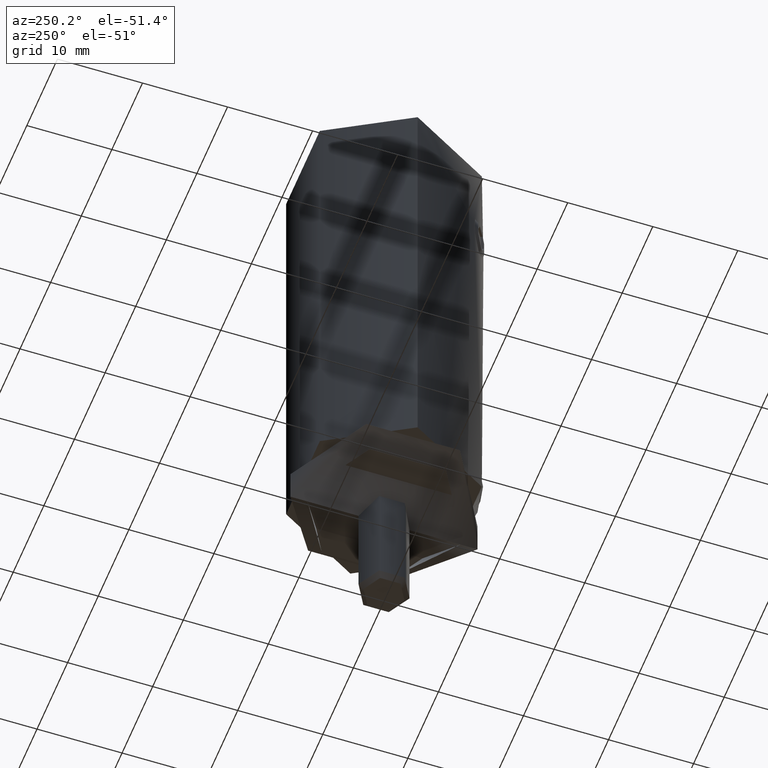
[diagram: clean part render]
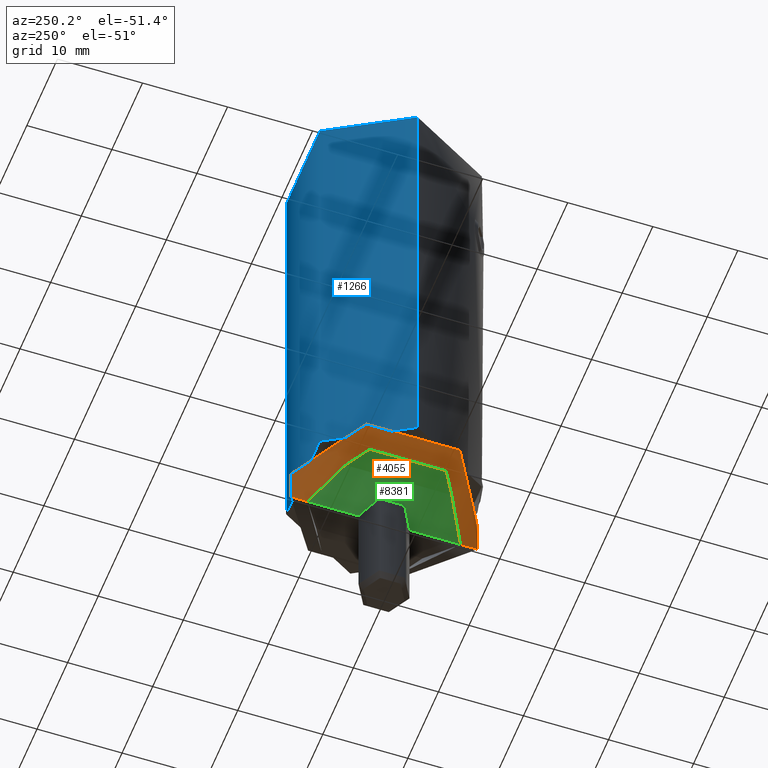
[diagram: same view with three faces highlighted in distinct colors, each labeled with its STEP entity id]
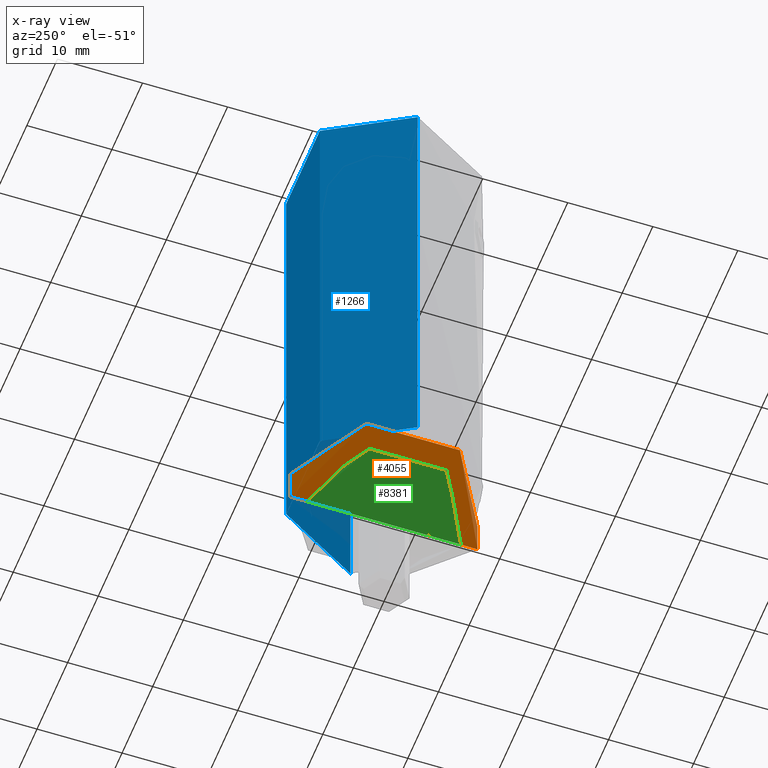
[diagram: x-ray of the same camera — body ghosted, the three highlighted faces saturated]
A machine part, auxiliary view with three faces highlighted in distinct colors.
The next image is the same camera in x-ray (body ghosted, the three faces saturated) — at least one of them is partly hidden behind the body in this view.
Their STEP definitions:

[orange] entity #4055 — the highlighted cylindrical surface (partial cylindrical patch) has radius 11 mm, axis along (0, 0, -1).
#152 = AXIS2_PLACEMENT_3D ( 'NONE', #18030, #9445, #18173 ) ;
#323 = CARTESIAN_POINT ( 'NONE',  ( 1.347111479062088405E-15, -11.00000000000000000, 1.999999999999997335 ) ) ;
#773 = CARTESIAN_POINT ( 'NONE',  ( -1.467299718637822936, -10.92589961751967209, -0.03871547189467000605 ) ) ;
#852 = CARTESIAN_POINT ( 'NONE',  ( -8.274939801116788729, 7.256114209764481515, -1.680118530030330737 ) ) ;
#1078 = CARTESIAN_POINT ( 'NONE',  ( -8.270404237882663878, -7.261240364331858821, -1.678201803686913296 ) ) ;
#1366 = CARTESIAN_POINT ( 'NONE',  ( -2.909539390763690836, 10.61443736759360768, -0.1976752837172814636 ) ) ;
#1800 = EDGE_CURVE ( 'NONE', #12080, #9661, #21603, .T. ) ;
#2155 = LINE ( 'NONE', #323, #19928 ) ;
#2505 = CARTESIAN_POINT ( 'NONE',  ( -9.870325263758303436, 4.908819845232764933, -2.435217944284062241 ) ) ;
#2583 = CARTESIAN_POINT ( 'NONE',  ( -3.587022875713401060, -10.40513242016348272, -0.3026765963442593632 ) ) ;
#2653 = CARTESIAN_POINT ( 'NONE',  ( -9.528112198186326154, -5.542580356113599116, -2.256720353186257633 ) ) ;
#2805 = CARTESIAN_POINT ( 'NONE',  ( -10.71292069468791652, 2.522954243024977394, -2.905732086509016820 ) ) ;
#4055 = ADVANCED_FACE ( 'NONE', ( #10069 ), #11418, .T. ) ;
#4381 = CARTESIAN_POINT ( 'NONE',  ( -2.888607095253890922, -10.62023836085034922, -0.1947433341766077186 ) ) ;
#4423 = CARTESIAN_POINT ( 'NONE',  ( 0.000000000000000000, -2.449293598294700991E-16, 1.999999999999998668 ) ) ;
#4469 = CARTESIAN_POINT ( 'NONE',  ( -4.925419289156148572, -9.861988409670594535, -0.5689665070091405319 ) ) ;
#4616 = CARTESIAN_POINT ( 'NONE',  ( 1.336382355046097823E-48, 11.00000000000000000, -5.189388084647006883E-16 ) ) ;
#4685 = CARTESIAN_POINT ( 'NONE',  ( -2.552064494333419642, 10.70615899485355982, -0.1510597987303588519 ) ) ;
#5418 = EDGE_CURVE ( 'NONE', #9661, #16861, #18389, .T. ) ;
#5574 = CARTESIAN_POINT ( 'NONE',  ( 0.000000000000000000, 11.00000000000000178, 4.000000000000000000 ) ) ;
#5773 = VERTEX_POINT ( 'NONE', #19046 ) ;
#5982 = CARTESIAN_POINT ( 'NONE',  ( -10.40232475824445402, -3.594992271804332784, -2.727129868824425873 ) ) ;
#6002 = CARTESIAN_POINT ( 'NONE',  ( 1.336382355046097823E-48, 11.00000000000000000, -5.189388084647006883E-16 ) ) ;
#6137 = CARTESIAN_POINT ( 'NONE',  ( -2.535894805954845399, -10.70986929249087183, -0.1491693662918049945 ) ) ;
#6281 = CARTESIAN_POINT ( 'NONE',  ( -9.864297932310673644, -4.919862878017693397, -2.432080945133788141 ) ) ;
#6490 = CARTESIAN_POINT ( 'NONE',  ( 0.000000000000000000, 11.00000000000000000, 2.000000000000000000 ) ) ;
#6863 = ORIENTED_EDGE ( 'NONE', *, *, #1800, .T. ) ;
#7783 = CARTESIAN_POINT ( 'NONE',  ( -10.70789862065493558, -2.544190434656818933, -2.902788414739169376 ) ) ;
#7849 = CARTESIAN_POINT ( 'NONE',  ( -7.536272219175395470, -8.020506772223100711, -1.382934182049867955 ) ) ;
#8181 = DIRECTION ( 'NONE',  ( -0.000000000000000000, 1.224646799147353700E-16, -1.000000000000000000 ) ) ;
#8391 = ORIENTED_EDGE ( 'NONE', *, *, #5418, .T. ) ;
#8393 = B_SPLINE_CURVE_WITH_KNOTS ( 'NONE', 3,
 ( #19949, #14610, #773, #6137, #4381, #2583, #12952, #4469, #18088, #19817, #16587, #16431, #7849, #16505, #1078, #21663, #9512, #2653, #6281, #11157, #5982, #12804, #7783, #11372, #18168, #19886, #19745, #21590, #13107, #2805, #18319, #20031, #21738, #2505, #14534, #16284, #18022, #852, #9872, #11675, #14994, #21879, #18533, #13242, #20316, #1366, #4685, #16653, #13172, #4616 ),
 .UNSPECIFIED., .F., .F.,
 ( 4, 2, 2, 2, 2, 2, 2, 2, 2, 2, 2, 2, 2, 2, 2, 2, 2, 2, 2, 2, 2, 2, 2, 2, 4 ),
 ( 1.310328094856666289E-18, 0.002189073260105993315, 0.003283609890158989322, 0.004378146520211985762, 0.006567219780317982113, 0.007661756410370981589, 0.008756293040423981933, 0.009850829670476979674, 0.01094536630052997742, 0.01313443956063597637, 0.01422897619068897584, 0.01532351282074197532, 0.01751258608084797774, 0.01860712271090097722, 0.01970165934095397670, 0.02079619597100697617, 0.02189073260105997565, 0.02407980586116597807, 0.02517434249121897755, 0.02626887912127197702, 0.02845795238137797944, 0.03064702564148398187, 0.03174156227153698828, 0.03283609890158998429, 0.03502517216169598324 ),
 .UNSPECIFIED. ) ;
#9440 = AXIS2_PLACEMENT_3D ( 'NONE', #4423, #11410, #21699 ) ;
#9445 = DIRECTION ( 'NONE',  ( -0.000000000000000000, 1.224646799147353700E-16, -1.000000000000000000 ) ) ;
#9512 = CARTESIAN_POINT ( 'NONE',  ( -8.933765440907338373, -6.427605682767927320, -1.973039072528820936 ) ) ;
#9661 = VERTEX_POINT ( 'NONE', #5574 ) ;
#9872 = CARTESIAN_POINT ( 'NONE',  ( -8.038023672227113892, 7.517592985075362222, -1.581089171437414009 ) ) ;
#10069 = FACE_OUTER_BOUND ( 'NONE', #20923, .T. ) ;
#10765 = ORIENTED_EDGE ( 'NONE', *, *, #21824, .F. ) ;
#11157 = CARTESIAN_POINT ( 'NONE',  ( -10.27909791159250474, -3.932874550868090235, -2.658022328760494268 ) ) ;
#11372 = CARTESIAN_POINT ( 'NONE',  ( -10.92471211156022193, -1.476027313982266609, -3.030827097976155127 ) ) ;
#11410 = DIRECTION ( 'NONE',  ( -0.000000000000000000, 1.224646799147353700E-16, -1.000000000000000000 ) ) ;
#11418 = CYLINDRICAL_SURFACE ( 'NONE', #9440, 11.00000000000000000 ) ;
#11675 = CARTESIAN_POINT ( 'NONE',  ( -7.292018243914418107, 8.265747716242641374, -1.286376107099082455 ) ) ;
#12080 = VERTEX_POINT ( 'NONE', #14640 ) ;
#12804 = CARTESIAN_POINT ( 'NONE',  ( -10.61711103650347177, -2.899876385102412968, -2.849734484269160983 ) ) ;
#12952 = CARTESIAN_POINT ( 'NONE',  ( -3.929596504971301307, -10.28046273033147173, -0.3646191335785071153 ) ) ;
#13107 = CARTESIAN_POINT ( 'NONE',  ( -10.85603726131801849, 1.810641572466848759, -2.990294805183330684 ) ) ;
#13172 = CARTESIAN_POINT ( 'NONE',  ( -0.7418275625343611068, 11.00000000000000000, -5.183841637196318075E-16 ) ) ;
#13242 = CARTESIAN_POINT ( 'NONE',  ( -3.940806586855172711, 10.27609454963676150, -0.3667713701925430780 ) ) ;
#13374 = EDGE_CURVE ( 'NONE', #5773, #16861, #8393, .T. ) ;
#13772 = VECTOR ( 'NONE', #15209, 1000.000000000000000 ) ;
#14534 = CARTESIAN_POINT ( 'NONE',  ( -9.532702728941725212, 5.534703615640189867, -2.259038555950330540 ) ) ;
#14610 = CARTESIAN_POINT ( 'NONE',  ( -0.7410559829012653976, -11.00000000000000000, -9.035018104045812762E-18 ) ) ;
#14640 = CARTESIAN_POINT ( 'NONE',  ( 1.347111479062088799E-15, -11.00000000000000178, 3.999999999999996447 ) ) ;
#14994 = CARTESIAN_POINT ( 'NONE',  ( -6.748102684486551262, 8.716583714318460352, -1.093034215487772132 ) ) ;
#15161 = ORIENTED_EDGE ( 'NONE', *, *, #13374, .F. ) ;
#15209 = DIRECTION ( 'NONE',  ( -0.000000000000000000, 1.224646799147353700E-16, -1.000000000000000000 ) ) ;
#16284 = CARTESIAN_POINT ( 'NONE',  ( -8.938929513497365420, 6.420426816852926599, -1.975441498214760783 ) ) ;
#16431 = CARTESIAN_POINT ( 'NONE',  ( -7.275574818717096548, -8.257812127948149339, -1.285438468066030904 ) ) ;
#16505 = CARTESIAN_POINT ( 'NONE',  ( -8.033687335736820145, -7.522220126825144959, -1.579312846230276790 ) ) ;
#16587 = CARTESIAN_POINT ( 'NONE',  ( -6.729267827708221184, -8.708754479614690069, -1.094261902260200037 ) ) ;
#16653 = CARTESIAN_POINT ( 'NONE',  ( -1.472410600950477821, 10.92572658670776242, -0.03881680667030760340 ) ) ;
#16861 = VERTEX_POINT ( 'NONE', #6002 ) ;
#18022 = CARTESIAN_POINT ( 'NONE',  ( -8.725234216480590277, 6.707913983110485034, -1.877197688189004010 ) ) ;
#18030 = CARTESIAN_POINT ( 'NONE',  ( 0.000000000000000000, -4.898587196589407898E-16, 3.999999999999998224 ) ) ;
#18088 = CARTESIAN_POINT ( 'NONE',  ( -5.552767705937054821, -9.522493953167321834, -0.7307400481009349580 ) ) ;
#18168 = CARTESIAN_POINT ( 'NONE',  ( -10.99859349490227700, -0.7537502832437183997, -3.076232627687861765 ) ) ;
#18173 = DIRECTION ( 'NONE',  ( 0.000000000000000000, 1.000000000000000000, 1.577021341797097067E-16 ) ) ;
#18319 = CARTESIAN_POINT ( 'NONE',  ( -10.62402915502530298, 2.874267179972428199, -2.853748354570512458 ) ) ;
#18389 = LINE ( 'NONE', #6490, #13772 ) ;
#18533 = CARTESIAN_POINT ( 'NONE',  ( -4.930220560771863880, 9.859271180693037095, -0.5702541942596096591 ) ) ;
#19046 = CARTESIAN_POINT ( 'NONE',  ( 1.347111479062088602E-15, -11.00000000000000000, -1.349922336622801336E-47 ) ) ;
#19745 = CARTESIAN_POINT ( 'NONE',  ( -10.98274293922298028, 0.7174293107113626222, -3.066573732303055522 ) ) ;
#19817 = CARTESIAN_POINT ( 'NONE',  ( -6.442175338900201886, -8.923348977481349920, -1.000140224583361048 ) ) ;
#19886 = CARTESIAN_POINT ( 'NONE',  ( -11.00067371623885037, 0.3456549981569151386, -3.077495249088777474 ) ) ;
#19928 = VECTOR ( 'NONE', #8181, 1000.000000000000000 ) ;
#19949 = CARTESIAN_POINT ( 'NONE',  ( 1.347111479062088602E-15, -11.00000000000000000, -1.349922336622801336E-47 ) ) ;
#20031 = CARTESIAN_POINT ( 'NONE',  ( -10.41174297898442980, 3.567494281461811134, -2.732445937162652605 ) ) ;
#20316 = CARTESIAN_POINT ( 'NONE',  ( -3.602820818996953722, 10.39958567651496502, -0.3054374273882527469 ) ) ;
#20923 = EDGE_LOOP ( 'NONE', ( #10765, #6863, #8391, #15161 ) ) ;
#21590 = CARTESIAN_POINT ( 'NONE',  ( -10.91026507547973523, 1.449642462018542632, -3.022874081477540553 ) ) ;
#21603 = CIRCLE ( 'NONE', #152, 11.00000000000000178 ) ;
#21663 = CARTESIAN_POINT ( 'NONE',  ( -8.719963951504304589, -6.714717162401942829, -1.874824198470383951 ) ) ;
#21699 = DIRECTION ( 'NONE',  ( 0.000000000000000000, 1.000000000000000000, 1.182766006347823109E-16 ) ) ;
#21738 = CARTESIAN_POINT ( 'NONE',  ( -10.28754891350618728, 3.911047893282801891, -2.662701681341376414 ) ) ;
#21824 = EDGE_CURVE ( 'NONE', #12080, #5773, #2155, .T. ) ;
#21879 = CARTESIAN_POINT ( 'NONE',  ( -5.557525793941376691, 9.519959481992172456, -0.7319549064988554177 ) ) ;

[blue] entity #1266 — the highlighted cylindrical surface (partial cylindrical patch) has radius 11 mm, axis along (0, 0, 1).
#61 = CARTESIAN_POINT ( 'NONE',  ( -10.99999999999998934, 0.2519652550928418444, 53.39940828047591026 ) ) ;
#185 = CARTESIAN_POINT ( 'NONE',  ( 0.000000000000000000, 0.000000000000000000, 55.00000000000000000 ) ) ;
#339 = DIRECTION ( 'NONE',  ( -0.000000000000000000, -0.000000000000000000, 1.000000000000000000 ) ) ;
#516 = ORIENTED_EDGE ( 'NONE', *, *, #20903, .T. ) ;
#591 = CIRCLE ( 'NONE', #18762, 10.99999999999999289 ) ;
#1227 = CARTESIAN_POINT ( 'NONE',  ( -10.99138456622760707, 0.5002250714047352664, 36.15930379952266804 ) ) ;
#1266 = ADVANCED_FACE ( 'NONE', ( #16806 ), #14047, .T. ) ;
#1397 = VECTOR ( 'NONE', #21452, 1000.000000000000000 ) ;
#1399 = CARTESIAN_POINT ( 'NONE',  ( 10.73393519092948623, 2.416305934057783045, 36.57782496849689835 ) ) ;
#1465 = CARTESIAN_POINT ( 'NONE',  ( 9.710582549426433729, 5.177462022628178673, 48.12778777531250540 ) ) ;
#1537 = CARTESIAN_POINT ( 'NONE',  ( 10.95871493289263299, 0.9824078860718482575, 53.25245800938259322 ) ) ;
#1608 = DIRECTION ( 'NONE',  ( -0.000000000000000000, -0.000000000000000000, 1.000000000000000000 ) ) ;
#1610 = CARTESIAN_POINT ( 'NONE',  ( 10.99999999999999645, -1.832169210965423057E-20, 53.39940828047591737 ) ) ;
#1728 = CARTESIAN_POINT ( 'NONE',  ( -10.29568834607457539, 3.877697571864480164, 37.40026834807496670 ) ) ;
#1801 = CARTESIAN_POINT ( 'NONE',  ( -9.667481184334761224, 5.249248039840226809, 39.03458745601035673 ) ) ;
#2137 = ORIENTED_EDGE ( 'NONE', *, *, #5621, .T. ) ;
#2797 = CARTESIAN_POINT ( 'NONE',  ( 0.000000000000000000, 0.000000000000000000, 0.000000000000000000 ) ) ;
#3044 = CARTESIAN_POINT ( 'NONE',  ( -10.99999999999999645, 1.347111479062088010E-15, 58.00000000000000000 ) ) ;
#3170 = CARTESIAN_POINT ( 'NONE',  ( -10.63186448416784025, 2.828027296435993598, 52.05336812640699407 ) ) ;
#3203 = CARTESIAN_POINT ( 'NONE',  ( 10.72208490730657360, 2.463954307759058882, 52.39144499421088597 ) ) ;
#3235 = EDGE_CURVE ( 'NONE', #20346, #16429, #9278, .T. ) ;
#3341 = CARTESIAN_POINT ( 'NONE',  ( 10.99999999999999645, -1.832169210965423057E-20, 53.39940828047591737 ) ) ;
#3343 = CARTESIAN_POINT ( 'NONE',  ( 10.56435491736843701, 3.073213813164761277, 36.87711830749055508 ) ) ;
#3375 = CARTESIAN_POINT ( 'NONE',  ( -10.48929323941067437, 3.317025603215281837, 51.50663104538143244 ) ) ;
#3450 = CARTESIAN_POINT ( 'NONE',  ( -9.494849601237000059, 5.554889612239381158, 39.69029067692063961 ) ) ;
#3638 = VERTEX_POINT ( 'NONE', #5500 ) ;
#4317 = ORIENTED_EDGE ( 'NONE', *, *, #6040, .F. ) ;
#4356 = LINE ( 'NONE', #7937, #1397 ) ;
#4513 = CARTESIAN_POINT ( 'NONE',  ( 10.99999999999999289, 0.000000000000000000, 55.00000000000000000 ) ) ;
#4683 = CARTESIAN_POINT ( 'NONE',  ( -10.95794404639704567, 0.9920796746228250917, 36.21159133631471860 ) ) ;
#4873 = VERTEX_POINT ( 'NONE', #4513 ) ;
#4898 = CARTESIAN_POINT ( 'NONE',  ( -10.95859947120640676, 0.9838684448568280061, 53.25204612324573361 ) ) ;
#4932 = CARTESIAN_POINT ( 'NONE',  ( 9.935765379171211720, 4.729709957007824705, 38.22104921943019917 ) ) ;
#4968 = CARTESIAN_POINT ( 'NONE',  ( -10.93313739207502877, 1.234929135000511380, 36.25054759848258357 ) ) ;
#5006 = CARTESIAN_POINT ( 'NONE',  ( 9.897646929197607690, 4.824942360906608663, 49.02787806873248400 ) ) ;
#5038 = CARTESIAN_POINT ( 'NONE',  ( -10.99132887674610259, 0.4995888412661448896, 53.36867533389131069 ) ) ;
#5186 = CARTESIAN_POINT ( 'NONE',  ( -10.93426773699784604, 1.221466730520443633, 53.16513773528284759 ) ) ;
#5225 = LINE ( 'NONE', #8269, #18437 ) ;
#5242 = CARTESIAN_POINT ( 'NONE',  ( -10.99999999999999645, 1.353269207583812273E-15, 36.14600281952412786 ) ) ;
#5500 = CARTESIAN_POINT ( 'NONE',  ( -10.99999999999999289, 1.347111479062087813E-15, 55.00000000000000000 ) ) ;
#5621 = EDGE_CURVE ( 'NONE', #17920, #8054, #7333, .T. ) ;
#6040 = EDGE_CURVE ( 'NONE', #17920, #20346, #21011, .T. ) ;
#6326 = DIRECTION ( 'NONE',  ( 1.000000000000000000, 0.000000000000000000, 0.000000000000000000 ) ) ;
#6462 = DIRECTION ( 'NONE',  ( -0.000000000000000000, -0.000000000000000000, 1.000000000000000000 ) ) ;
#6604 = CARTESIAN_POINT ( 'NONE',  ( 10.86843869134571960, 1.713435614366018767, 36.35434967314589016 ) ) ;
#6639 = CARTESIAN_POINT ( 'NONE',  ( -10.73861026526337703, 2.425564938465552878, 36.56563245372201010 ) ) ;
#6675 = CARTESIAN_POINT ( 'NONE',  ( 9.180215329875196062, 6.060640059761967180, 41.83358403848891527 ) ) ;
#6713 = CARTESIAN_POINT ( 'NONE',  ( -10.29106834762203881, 3.896808626440962264, 50.71962474638306162 ) ) ;
#6779 = CARTESIAN_POINT ( 'NONE',  ( -9.251613099835374499, 5.950594844368695568, 41.10732422085751381 ) ) ;
#6818 = CARTESIAN_POINT ( 'NONE',  ( 9.354794618527440875, 5.787272587873970586, 40.38567754118803066 ) ) ;
#6860 = CARTESIAN_POINT ( 'NONE',  ( -10.83582434760962165, 1.954247557910655742, 36.40668192888388432 ) ) ;
#7115 = CARTESIAN_POINT ( 'NONE',  ( 10.99999999999999645, -2.446736237841549440E-16, 36.14600281952412786 ) ) ;
#7333 = CIRCLE ( 'NONE', #19690, 11.00000000000000000 ) ;
#7937 = CARTESIAN_POINT ( 'NONE',  ( 10.99999999999999645, 0.000000000000000000, 58.00000000000000000 ) ) ;
#8054 = VERTEX_POINT ( 'NONE', #20499 ) ;
#8251 = ORIENTED_EDGE ( 'NONE', *, *, #9179, .F. ) ;
#8262 = DIRECTION ( 'NONE',  ( -0.000000000000000000, -0.000000000000000000, 1.000000000000000000 ) ) ;
#8269 = CARTESIAN_POINT ( 'NONE',  ( -10.99999999999999645, 1.347111479062088010E-15, 58.00000000000000000 ) ) ;
#8271 = CARTESIAN_POINT ( 'NONE',  ( 10.50108648005596912, 3.282094437489232686, 36.99397323304766871 ) ) ;
#8340 = CARTESIAN_POINT ( 'NONE',  ( 9.235064815189407028, 5.976387414057342973, 44.79618393684412325 ) ) ;
#8371 = CARTESIAN_POINT ( 'NONE',  ( -9.268515488525327584, 5.925304606801425678, 45.28950252704782997 ) ) ;
#8401 = CARTESIAN_POINT ( 'NONE',  ( 9.397997172397692722, 5.717225328498645176, 40.14787537986046573 ) ) ;
#8437 = CARTESIAN_POINT ( 'NONE',  ( -10.84081443867489192, 1.875753506808872428, 52.82778105737060059 ) ) ;
#8480 = CARTESIAN_POINT ( 'NONE',  ( 9.251907777510677278, 5.950137001418886129, 41.10480942168888419 ) ) ;
#8513 = CARTESIAN_POINT ( 'NONE',  ( -9.631519731208602053, 5.315944351683324243, 47.65779525466366806 ) ) ;
#8577 = CARTESIAN_POINT ( 'NONE',  ( -9.549032377428090967, 5.461755952810698034, 39.46726535746743281 ) ) ;
#8643 = CARTESIAN_POINT ( 'NONE',  ( -10.50059767142498224, 3.283602282751346912, 36.99491037398540527 ) ) ;
#9076 = DIRECTION ( 'NONE',  ( 1.000000000000000000, 0.000000000000000000, 0.000000000000000000 ) ) ;
#9179 = EDGE_CURVE ( 'NONE', #16429, #4873, #4356, .T. ) ;
#9278 = B_SPLINE_CURVE_WITH_KNOTS ( 'NONE', 3,
 ( #20347, #18788, #20557, #6604, #18564, #1399, #16919, #3343, #8271, #13564, #11631, #15246, #4932, #10040, #20276, #8401, #6818, #15313, #8480, #6675, #15381, #18713, #18636, #8340, #20479, #22057, #22128, #1465, #5006, #21914, #17066, #9968, #21983, #10108, #20416, #3203, #11857, #11708, #10180, #13416, #1537, #22203, #11922, #1610 ),
 .UNSPECIFIED., .F., .F.,
 ( 4, 2, 2, 2, 2, 2, 2, 2, 2, 2, 2, 2, 2, 2, 2, 2, 2, 2, 2, 2, 2, 4 ),
 ( 2.378719666313131764E-19, 0.001483315845811688074, 0.002224973768717534821, 0.002966631691623381351, 0.003708289614529227882, 0.004449947537435073978, 0.005933263383246779182, 0.007416579229058484386, 0.008158237151964335687, 0.008899895074870187855, 0.01038321092068187311, 0.01186652676649355663, 0.01334984261230523842, 0.01483315845811692020, 0.01779979014974030979, 0.01928310599555200372, 0.02002476391845785242, 0.02076642184136369765, 0.02150807976426954288, 0.02224973768717539158, 0.02299139561008123681, 0.02373305353298708550 ),
 .UNSPECIFIED. ) ;
#9968 = CARTESIAN_POINT ( 'NONE',  ( 10.44166798045407951, 3.463298747008925371, 51.32027784202276877 ) ) ;
#10027 = LINE ( 'NONE', #3044, #19453 ) ;
#10040 = CARTESIAN_POINT ( 'NONE',  ( 9.663857765110266840, 5.263026034808701681, 39.02598245889341655 ) ) ;
#10108 = CARTESIAN_POINT ( 'NONE',  ( 10.58631334673217594, 2.992962176338219482, 51.88059600512112013 ) ) ;
#10180 = CARTESIAN_POINT ( 'NONE',  ( 10.87572997435835376, 1.664298062090882269, 52.95428903609269611 ) ) ;
#10214 = CARTESIAN_POINT ( 'NONE',  ( -9.185728301568170551, 6.051719503376332021, 44.06600305643028292 ) ) ;
#10359 = CARTESIAN_POINT ( 'NONE',  ( -10.58522211789765421, 2.996832365932807996, 51.87643854240057095 ) ) ;
#10398 = VERTEX_POINT ( 'NONE', #5242 ) ;
#10665 = CARTESIAN_POINT ( 'NONE',  ( 10.99999999999999645, 0.000000000000000000, 58.00000000000000000 ) ) ;
#11366 = DIRECTION ( 'NONE',  ( 1.000000000000000000, 0.000000000000000000, 0.000000000000000000 ) ) ;
#11519 = DIRECTION ( 'NONE',  ( -0.000000000000000000, -0.000000000000000000, 1.000000000000000000 ) ) ;
#11564 = CARTESIAN_POINT ( 'NONE',  ( 0.000000000000000000, 0.000000000000000000, 58.00000000000000000 ) ) ;
#11631 = CARTESIAN_POINT ( 'NONE',  ( 10.29566045163969967, 3.877733627698562113, 37.40035271687323615 ) ) ;
#11708 = CARTESIAN_POINT ( 'NONE',  ( 10.84073496705685358, 1.876116880764277184, 52.82748759401037830 ) ) ;
#11825 = CARTESIAN_POINT ( 'NONE',  ( -9.281608931760761294, 5.903937260215355032, 40.86562928851518706 ) ) ;
#11857 = CARTESIAN_POINT ( 'NONE',  ( 10.76398857083809979, 2.275499774362683691, 52.54633830998512423 ) ) ;
#11890 = CARTESIAN_POINT ( 'NONE',  ( -9.152591237187898798, 6.101645661278764621, 43.07453183032576050 ) ) ;
#11922 = CARTESIAN_POINT ( 'NONE',  ( 10.99999999999999645, 0.2476221471021937959, 53.39940828047589605 ) ) ;
#11958 = CARTESIAN_POINT ( 'NONE',  ( -10.43979944061768350, 3.468917546052644685, 51.31291825205304491 ) ) ;
#12094 = CARTESIAN_POINT ( 'NONE',  ( -9.354779368371730186, 5.787300104866425876, 40.38565921043970519 ) ) ;
#12331 = CARTESIAN_POINT ( 'NONE',  ( 11.00000000000000000, 0.000000000000000000, 0.000000000000000000 ) ) ;
#12445 = ORIENTED_EDGE ( 'NONE', *, *, #18631, .F. ) ;
#12606 = ORIENTED_EDGE ( 'NONE', *, *, #13071, .T. ) ;
#13071 = EDGE_CURVE ( 'NONE', #8054, #10398, #10027, .T. ) ;
#13170 = CARTESIAN_POINT ( 'NONE',  ( -10.99999999999999645, 0.2495468869992595318, 36.14600281952412786 ) ) ;
#13327 = B_SPLINE_CURVE_WITH_KNOTS ( 'NONE', 3,
 ( #13387, #13170, #1227, #4683, #4968, #6860, #6639, #22088, #8643, #18674, #1728, #22167, #20662, #20518, #1801, #8577, #3450, #15284, #12094, #11825, #6779, #17175, #18748, #11890, #18976, #18825, #10214, #8371, #13740, #8513, #18893, #17024, #22237, #13599, #6713, #11958, #3375, #10359, #3170, #20588, #15499, #8437, #15348, #5186, #4898, #5038, #61, #17108 ),
 .UNSPECIFIED., .F., .F.,
 ( 4, 2, 2, 2, 2, 2, 2, 2, 2, 2, 2, 2, 2, 2, 2, 2, 2, 2, 2, 2, 2, 2, 2, 4 ),
 ( 0.02383190917546752080, 0.02457588803516111420, 0.02531986689485471106, 0.02680782461424190133, 0.02755180347393549473, 0.02829578233362909159, 0.02978374005301626798, 0.03052771891270986485, 0.03127169777240346171, 0.03201567663209706205, 0.03275965549179065545, 0.03424761321117784918, 0.03499159207087144952, 0.03573557093056504291, 0.03871148636933943732, 0.04019944408872662411, 0.04168740180811382479, 0.04317535952750101852, 0.04391933838719461192, 0.04466331724688819838, 0.04540729610658178483, 0.04615127496627537129, 0.04689525382596896469, 0.04763923268566255115 ),
 .UNSPECIFIED. ) ;
#13387 = CARTESIAN_POINT ( 'NONE',  ( -10.99999999999999645, 1.353269207583812273E-15, 36.14600281952412786 ) ) ;
#13416 = CARTESIAN_POINT ( 'NONE',  ( 10.93506435769343099, 1.214807806913857924, 53.16799819195804844 ) ) ;
#13564 = CARTESIAN_POINT ( 'NONE',  ( 10.36679842674548269, 3.684352254798578308, 37.25538119780029689 ) ) ;
#13599 = CARTESIAN_POINT ( 'NONE',  ( -10.19129927505127142, 4.147017466268720476, 50.30699004470173463 ) ) ;
#13740 = CARTESIAN_POINT ( 'NONE',  ( -9.394268010509948752, 5.731446176849932073, 46.24700510606407278 ) ) ;
#13972 = DIRECTION ( 'NONE',  ( -0.000000000000000000, -0.000000000000000000, 1.000000000000000000 ) ) ;
#14047 = CYLINDRICAL_SURFACE ( 'NONE', #17788, 10.99999999999999645 ) ;
#14803 = VERTEX_POINT ( 'NONE', #18700 ) ;
#15246 = CARTESIAN_POINT ( 'NONE',  ( 10.08153054388151126, 4.417296773384426167, 37.86598695126414071 ) ) ;
#15284 = CARTESIAN_POINT ( 'NONE',  ( -9.397807185784357031, 5.717533353911917970, 40.14891663085152373 ) ) ;
#15313 = CARTESIAN_POINT ( 'NONE',  ( 9.281883585321500263, 5.903502644170384173, 40.86370977007750582 ) ) ;
#15348 = CARTESIAN_POINT ( 'NONE',  ( -10.87546595887654099, 1.665662659555587899, 52.95332915884883107 ) ) ;
#15381 = CARTESIAN_POINT ( 'NONE',  ( 9.156734942247306108, 6.095426984534098480, 42.32669234761433330 ) ) ;
#15499 = CARTESIAN_POINT ( 'NONE',  ( -10.76371629460333779, 2.276866364409292132, 52.54533852905852598 ) ) ;
#15930 = VECTOR ( 'NONE', #13972, 1000.000000000000000 ) ;
#16429 = VERTEX_POINT ( 'NONE', #3341 ) ;
#16669 = EDGE_CURVE ( 'NONE', #14803, #3638, #5225, .T. ) ;
#16806 = FACE_OUTER_BOUND ( 'NONE', #17081, .T. ) ;
#16919 = CARTESIAN_POINT ( 'NONE',  ( 10.68077503142536600, 2.640318671985242283, 36.66904367614384341 ) ) ;
#17024 = CARTESIAN_POINT ( 'NONE',  ( -9.900462438095129158, 4.798056201855558811, 49.01826621475438372 ) ) ;
#17066 = CARTESIAN_POINT ( 'NONE',  ( 10.29294014991732276, 3.891896294933171241, 50.72727436623613073 ) ) ;
#17081 = EDGE_LOOP ( 'NONE', ( #2137, #12606, #516, #20019, #12445, #8251, #20850, #4317 ) ) ;
#17108 = CARTESIAN_POINT ( 'NONE',  ( -10.99999999999999645, 3.179853121175712002E-15, 53.39940828047591737 ) ) ;
#17175 = CARTESIAN_POINT ( 'NONE',  ( -9.179988342886431951, 6.060982579414075033, 41.83686105521513099 ) ) ;
#17788 = AXIS2_PLACEMENT_3D ( 'NONE', #11564, #6462, #6326 ) ;
#17920 = VERTEX_POINT ( 'NONE', #12331 ) ;
#18437 = VECTOR ( 'NONE', #1608, 1000.000000000000000 ) ;
#18564 = CARTESIAN_POINT ( 'NONE',  ( 10.82784448843477065, 1.952865275514413579, 36.42034082848900312 ) ) ;
#18631 = EDGE_CURVE ( 'NONE', #4873, #3638, #591, .T. ) ;
#18636 = CARTESIAN_POINT ( 'NONE',  ( 9.169056902621068872, 6.077172383613068440, 43.81856789785169326 ) ) ;
#18674 = CARTESIAN_POINT ( 'NONE',  ( -10.36683068439162625, 3.684211851886626476, 37.25533283784126581 ) ) ;
#18700 = CARTESIAN_POINT ( 'NONE',  ( -10.99999999999999645, 3.179853121175712002E-15, 53.39940828047591737 ) ) ;
#18713 = CARTESIAN_POINT ( 'NONE',  ( 9.151198040853889992, 6.103736506717106991, 43.32461157251786688 ) ) ;
#18748 = CARTESIAN_POINT ( 'NONE',  ( -9.156710212992040354, 6.095464100352849357, 42.32911800234614930 ) ) ;
#18762 = AXIS2_PLACEMENT_3D ( 'NONE', #185, #339, #9076 ) ;
#18788 = CARTESIAN_POINT ( 'NONE',  ( 10.99999999999999645, 0.5014577260992736374, 36.14600281952412786 ) ) ;
#18825 = CARTESIAN_POINT ( 'NONE',  ( -9.172980409928873868, 6.070968219877378225, 43.81992371072484360 ) ) ;
#18893 = CARTESIAN_POINT ( 'NONE',  ( -9.718334420191714784, 5.156983217115802987, 48.11962613464156391 ) ) ;
#18976 = CARTESIAN_POINT ( 'NONE',  ( -9.156399203532410880, 6.095947699353321703, 43.32463628443333192 ) ) ;
#19453 = VECTOR ( 'NONE', #8262, 1000.000000000000000 ) ;
#19690 = AXIS2_PLACEMENT_3D ( 'NONE', #2797, #11519, #11366 ) ;
#20019 = ORIENTED_EDGE ( 'NONE', *, *, #16669, .T. ) ;
#20276 = CARTESIAN_POINT ( 'NONE',  ( 9.543942195733452039, 5.472589204515953654, 39.45856544710303382 ) ) ;
#20346 = VERTEX_POINT ( 'NONE', #7115 ) ;
#20347 = CARTESIAN_POINT ( 'NONE',  ( 10.99999999999999645, -2.446736237841549440E-16, 36.14600281952412786 ) ) ;
#20416 = CARTESIAN_POINT ( 'NONE',  ( 10.63323463236588395, 2.822852607429330973, 52.05854110297575232 ) ) ;
#20479 = CARTESIAN_POINT ( 'NONE',  ( 9.283263599273574584, 5.902011725479056281, 45.28033809655084241 ) ) ;
#20499 = CARTESIAN_POINT ( 'NONE',  ( -10.99999999999999822, 1.347111479062088405E-15, 0.000000000000000000 ) ) ;
#20518 = CARTESIAN_POINT ( 'NONE',  ( -9.732232187159731041, 5.128920919710670212, 38.82356213026512393 ) ) ;
#20557 = CARTESIAN_POINT ( 'NONE',  ( 10.96587584406541716, 0.9923969674564586674, 36.19802835478421343 ) ) ;
#20588 = CARTESIAN_POINT ( 'NONE',  ( -10.72101701489970615, 2.468618027424986039, 52.38748206870776158 ) ) ;
#20662 = CARTESIAN_POINT ( 'NONE',  ( -9.935134642669446237, 4.730939886932007177, 38.22293688732766270 ) ) ;
#20850 = ORIENTED_EDGE ( 'NONE', *, *, #3235, .F. ) ;
#20903 = EDGE_CURVE ( 'NONE', #10398, #14803, #13327, .T. ) ;
#21011 = LINE ( 'NONE', #10665, #15930 ) ;
#21452 = DIRECTION ( 'NONE',  ( -0.000000000000000000, -0.000000000000000000, 1.000000000000000000 ) ) ;
#21914 = CARTESIAN_POINT ( 'NONE',  ( 10.19183751265292592, 4.145759157978434750, 50.30931780347250282 ) ) ;
#21983 = CARTESIAN_POINT ( 'NONE',  ( 10.49064334275274568, 3.312741329978622584, 51.51188371964885704 ) ) ;
#22057 = CARTESIAN_POINT ( 'NONE',  ( 9.402351056604709711, 5.710387033262660950, 46.24071508231384797 ) ) ;
#22088 = CARTESIAN_POINT ( 'NONE',  ( -10.56379577902986000, 3.075141893300893603, 36.87813969071029874 ) ) ;
#22128 = CARTESIAN_POINT ( 'NONE',  ( 9.473599840962542373, 5.592520689685464674, 46.71881535906704386 ) ) ;
#22167 = CARTESIAN_POINT ( 'NONE',  ( -10.08068197055299287, 4.419366348462889782, 37.86787976243947185 ) ) ;
#22203 = CARTESIAN_POINT ( 'NONE',  ( 10.99131598310265190, 0.4995309746274517737, 53.36862894122175049 ) ) ;
#22237 = CARTESIAN_POINT ( 'NONE',  ( -9.996026330001592797, 4.597802995900672762, 49.45638380760347985 ) ) ;

[green] entity #8381 — the highlighted cylindrical surface (partial cylindrical patch) has radius 9 mm, axis along (0, 0, -1).
#878 = CYLINDRICAL_SURFACE ( 'NONE', #21097, 9.000000000000000000 ) ;
#967 = VERTEX_POINT ( 'NONE', #5250 ) ;
#1234 = CARTESIAN_POINT ( 'NONE',  ( -2.400543471972580931E-16, 9.000000000000000000, -3.479268480956762563E-16 ) ) ;
#1348 = DIRECTION ( 'NONE',  ( -0.000000000000000000, 1.224646799147353700E-16, -1.000000000000000000 ) ) ;
#1372 = CARTESIAN_POINT ( 'NONE',  ( -6.768251941356697721, 5.939311286811438606, -1.108484183741387463 ) ) ;
#1434 = CARTESIAN_POINT ( 'NONE',  ( -5.948845107420104306, 6.759918684724715021, -0.8504051195112002359 ) ) ;
#1510 = CARTESIAN_POINT ( 'NONE',  ( -7.149048956074051553, -5.498262348091527585, -1.238749106385897303 ) ) ;
#1585 = CARTESIAN_POINT ( 'NONE',  ( -5.498166174509198534, 7.131299142067262231, -0.7240399827120445053 ) ) ;
#1655 = CARTESIAN_POINT ( 'NONE',  ( -8.706750696824439473, -2.354395332776095806, -1.869998219929484007 ) ) ;
#2749 = VERTEX_POINT ( 'NONE', #19772 ) ;
#3244 = CARTESIAN_POINT ( 'NONE',  ( -7.137730573692688374, 5.489759116818984985, -1.236757668303944291 ) ) ;
#3312 = CARTESIAN_POINT ( 'NONE',  ( -8.765216953880972994, 2.063786212828273570, -1.896759034376211517 ) ) ;
#3565 = LINE ( 'NONE', #6623, #7336 ) ;
#4261 = EDGE_CURVE ( 'NONE', #2749, #11509, #11140, .T. ) ;
#4546 = B_SPLINE_CURVE_WITH_KNOTS ( 'NONE', 3,
 ( #1234, #14773, #14999, #4691, #16735, #8163, #18833, #15429, #8379, #13529, #1585, #1434, #13391, #11833, #1372, #3244, #11754, #13606, #16962, #9944, #20388, #18681, #3312, #13678, #10221, #15358, #20319, #15213, #8519, #1655, #22172, #4904, #21955, #1510, #20526, #5119, #10150, #10080, #22243, #17181, #18756, #8446, #20455, #11968, #11896, #15289 ),
 .UNSPECIFIED., .F., .F.,
 ( 4, 2, 2, 2, 2, 2, 2, 2, 2, 2, 2, 2, 2, 2, 2, 2, 2, 2, 2, 2, 2, 2, 4 ),
 ( 7.556920727060205387E-19, 0.001780017036675974598, 0.002670025555013961788, 0.003560034073351948762, 0.005340051110027925312, 0.006230059628365913586, 0.007120068146703900994, 0.008010076665041887534, 0.008900085183379877543, 0.01068010222005585409, 0.01157011073839384237, 0.01246011925673183064, 0.01424013629340781066, 0.01513014481174579720, 0.01602015333008378201, 0.01780017036675976203, 0.01958018740343573511, 0.02136020444011171512, 0.02314022147678768820, 0.02403022999512567648, 0.02492023851346366128, 0.02670025555013963089, 0.02848027258681560744 ),
 .UNSPECIFIED. ) ;
#4691 = CARTESIAN_POINT ( 'NONE',  ( -2.063687799209021456, 8.765201723261311528, -0.09867412125235110187 ) ) ;
#4904 = CARTESIAN_POINT ( 'NONE',  ( -8.076187423238080143, -4.015848512649689894, -1.597017394166102333 ) ) ;
#5119 = CARTESIAN_POINT ( 'NONE',  ( -5.950894307444037246, -6.776770896051598214, -0.8477870920323508086 ) ) ;
#5250 = CARTESIAN_POINT ( 'NONE',  ( -2.400543471972580931E-16, 9.000000000000000000, -3.479268480956762563E-16 ) ) ;
#5460 = FACE_OUTER_BOUND ( 'NONE', #11218, .T. ) ;
#6258 = CARTESIAN_POINT ( 'NONE',  ( 1.102158473084345979E-15, -9.000000000000000000, -1.062336755025038854E-15 ) ) ;
#6352 = CIRCLE ( 'NONE', #11208, 9.000000000000000000 ) ;
#6571 = VECTOR ( 'NONE', #18422, 1000.000000000000000 ) ;
#6623 = CARTESIAN_POINT ( 'NONE',  ( 0.000000000000000000, 9.000000000000000000, 2.000000000000000000 ) ) ;
#7336 = VECTOR ( 'NONE', #1348, 1000.000000000000000 ) ;
#8163 = CARTESIAN_POINT ( 'NONE',  ( -2.920474601856164476, 8.518185119866812371, -0.2001631741012346311 ) ) ;
#8379 = CARTESIAN_POINT ( 'NONE',  ( -4.531352901498307162, 7.798104117224857745, -0.4838789241247320461 ) ) ;
#8381 = ADVANCED_FACE ( 'NONE', ( #5460 ), #878, .F. ) ;
#8446 = CARTESIAN_POINT ( 'NONE',  ( -2.925613582454156258, -8.531357960814737851, -0.1956866942786571750 ) ) ;
#8519 = CARTESIAN_POINT ( 'NONE',  ( -8.881823224659212812, -1.483538835291111413, -1.950134147624566383 ) ) ;
#9469 = DIRECTION ( 'NONE',  ( 0.000000000000000000, 1.000000000000000000, 1.445602896647339163E-16 ) ) ;
#9944 = CARTESIAN_POINT ( 'NONE',  ( -8.417399978128178972, 3.198897901575214142, -1.742292184308380509 ) ) ;
#10080 = CARTESIAN_POINT ( 'NONE',  ( -4.773436371815511059, -7.635452310474525994, -0.5428710946691436279 ) ) ;
#10150 = CARTESIAN_POINT ( 'NONE',  ( -5.503122217084854384, -7.145554771257089932, -0.7205878137888378498 ) ) ;
#10221 = CARTESIAN_POINT ( 'NONE',  ( -8.999598962355415566, 0.6012754681276700763, -2.005021002590621659 ) ) ;
#11140 = LINE ( 'NONE', #16621, #6571 ) ;
#11208 = AXIS2_PLACEMENT_3D ( 'NONE', #18444, #21859, #13434 ) ;
#11218 = EDGE_LOOP ( 'NONE', ( #13683, #17354, #20027, #21379 ) ) ;
#11509 = VERTEX_POINT ( 'NONE', #6258 ) ;
#11714 = EDGE_CURVE ( 'NONE', #2749, #15135, #6352, .T. ) ;
#11754 = CARTESIAN_POINT ( 'NONE',  ( -7.313069460956389989, 5.254070590124755746, -1.300514150201307340 ) ) ;
#11833 = CARTESIAN_POINT ( 'NONE',  ( -6.573466969556618800, 6.154151738390525317, -1.043719117738680868 ) ) ;
#11896 = CARTESIAN_POINT ( 'NONE',  ( -0.5933890720346677305, -9.000000000000003553, -1.394028001636744047E-15 ) ) ;
#11968 = CARTESIAN_POINT ( 'NONE',  ( -1.185945749614560674, -8.941669071172402283, -0.02496988984095495703 ) ) ;
#13391 = CARTESIAN_POINT ( 'NONE',  ( -6.163763077976560645, 6.564455524836764866, -0.9146813748702002922 ) ) ;
#13434 = DIRECTION ( 'NONE',  ( 0.000000000000000000, 1.000000000000000000, 1.445602896647339163E-16 ) ) ;
#13529 = CARTESIAN_POINT ( 'NONE',  ( -5.261251621140060841, 7.307881232908766123, -0.6616958035452409348 ) ) ;
#13606 = CARTESIAN_POINT ( 'NONE',  ( -7.803510929205664581, 4.522188408825447148, -1.485353026589255832 ) ) ;
#13678 = CARTESIAN_POINT ( 'NONE',  ( -8.940731937358901149, 1.190075437836059624, -1.977100309098893005 ) ) ;
#13683 = ORIENTED_EDGE ( 'NONE', *, *, #11714, .F. ) ;
#14527 = CARTESIAN_POINT ( 'NONE',  ( 0.000000000000000000, 9.000000000000000000, 2.000000000000000000 ) ) ;
#14773 = CARTESIAN_POINT ( 'NONE',  ( -0.6023680047795308967, 9.000000000000003553, 3.462882446612393361E-15 ) ) ;
#14999 = CARTESIAN_POINT ( 'NONE',  ( -1.193336431064577763, 8.940146670528568151, -0.02560525405432906992 ) ) ;
#15135 = VERTEX_POINT ( 'NONE', #14527 ) ;
#15213 = CARTESIAN_POINT ( 'NONE',  ( -8.926111635704426561, -1.189302625270158398, -1.970709750180467346 ) ) ;
#15289 = CARTESIAN_POINT ( 'NONE',  ( 1.102158473084345979E-15, -9.000000000000000000, -1.062336755025038854E-15 ) ) ;
#15358 = CARTESIAN_POINT ( 'NONE',  ( -9.000197485660869745, -0.2915881291376424267, -2.005301636450294911 ) ) ;
#15429 = CARTESIAN_POINT ( 'NONE',  ( -4.016827951074801284, 8.075423365992344671, -0.3767224930350350776 ) ) ;
#16621 = CARTESIAN_POINT ( 'NONE',  ( 1.102182119232617714E-15, -9.000000000000000000, 1.999999999999997335 ) ) ;
#16735 = CARTESIAN_POINT ( 'NONE',  ( -2.351102510118275202, 8.692581125495630445, -0.1288197862251578840 ) ) ;
#16962 = CARTESIAN_POINT ( 'NONE',  ( -8.079162393224690319, 4.008667575377399928, -1.598285831224364628 ) ) ;
#17181 = CARTESIAN_POINT ( 'NONE',  ( -4.001315330663511638, -8.066963386631147870, -0.3793526689448616929 ) ) ;
#17354 = ORIENTED_EDGE ( 'NONE', *, *, #4261, .T. ) ;
#18196 = CARTESIAN_POINT ( 'NONE',  ( 0.000000000000000000, -2.449293598294700991E-16, 1.999999999999998668 ) ) ;
#18422 = DIRECTION ( 'NONE',  ( -0.000000000000000000, 1.224646799147353700E-16, -1.000000000000000000 ) ) ;
#18425 = EDGE_CURVE ( 'NONE', #15135, #967, #3565, .T. ) ;
#18444 = CARTESIAN_POINT ( 'NONE',  ( 0.000000000000000000, -2.449293598294701484E-16, 1.999999999999998668 ) ) ;
#18681 = CARTESIAN_POINT ( 'NONE',  ( -8.691438267407120222, 2.355182090629234448, -1.863300288605560517 ) ) ;
#18756 = CARTESIAN_POINT ( 'NONE',  ( -3.736670627740367845, -8.192869673815865283, -0.3301080335937515708 ) ) ;
#18833 = CARTESIAN_POINT ( 'NONE',  ( -3.201236851661947824, 8.416586300377321805, -0.2412779289930545856 ) ) ;
#19772 = CARTESIAN_POINT ( 'NONE',  ( 1.102182119232617714E-15, -9.000000000000000000, 1.999999999999997335 ) ) ;
#19862 = EDGE_CURVE ( 'NONE', #967, #11509, #4546, .T. ) ;
#20027 = ORIENTED_EDGE ( 'NONE', *, *, #19862, .F. ) ;
#20319 = CARTESIAN_POINT ( 'NONE',  ( -8.985476887790627032, -0.5925493789659647126, -1.998378257453278239 ) ) ;
#20388 = CARTESIAN_POINT ( 'NONE',  ( -8.517504256587193012, 2.922345474988994773, -1.786057172129877690 ) ) ;
#20455 = CARTESIAN_POINT ( 'NONE',  ( -2.362258398571400075, -8.705150679785441881, -0.1237550131540293696 ) ) ;
#20526 = CARTESIAN_POINT ( 'NONE',  ( -6.773059061270844339, -5.955118620857088096, -1.106434257152071998 ) ) ;
#21097 = AXIS2_PLACEMENT_3D ( 'NONE', #18196, #21621, #9469 ) ;
#21379 = ORIENTED_EDGE ( 'NONE', *, *, #18425, .F. ) ;
#21621 = DIRECTION ( 'NONE',  ( -0.000000000000000000, 1.224646799147353700E-16, -1.000000000000000000 ) ) ;
#21859 = DIRECTION ( 'NONE',  ( -0.000000000000000000, 1.224646799147353700E-16, -1.000000000000000000 ) ) ;
#21955 = CARTESIAN_POINT ( 'NONE',  ( -7.798571145882972289, -4.530130009987127337, -1.483440302711154235 ) ) ;
#22172 = CARTESIAN_POINT ( 'NONE',  ( -8.533385061147310324, -2.921161065399778600, -1.791675246480360251 ) ) ;
#22243 = CARTESIAN_POINT ( 'NONE',  ( -4.519225296665150715, -7.788647210821149969, -0.4855972237296189986 ) ) ;